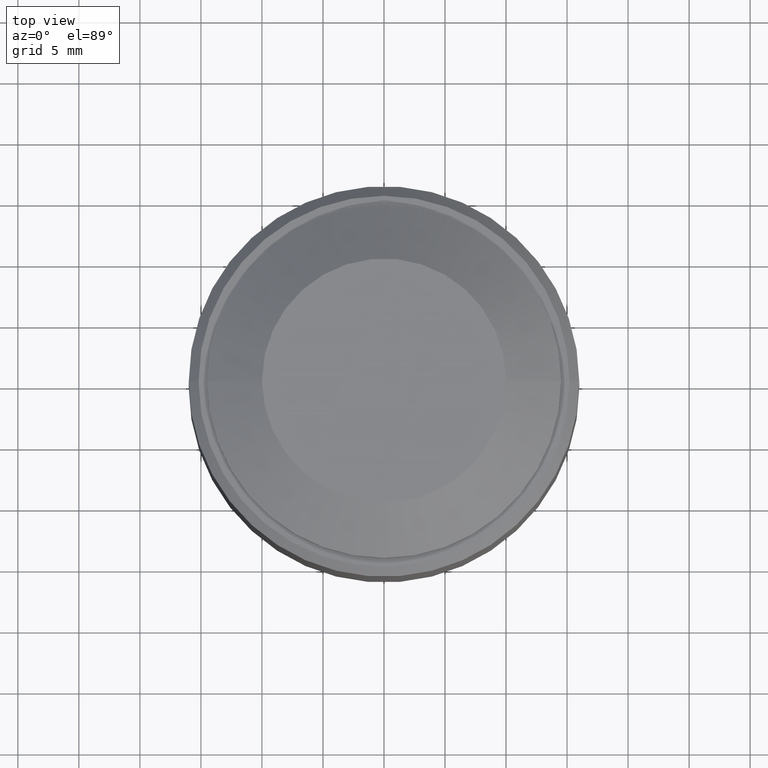
[diagram: clean part render]
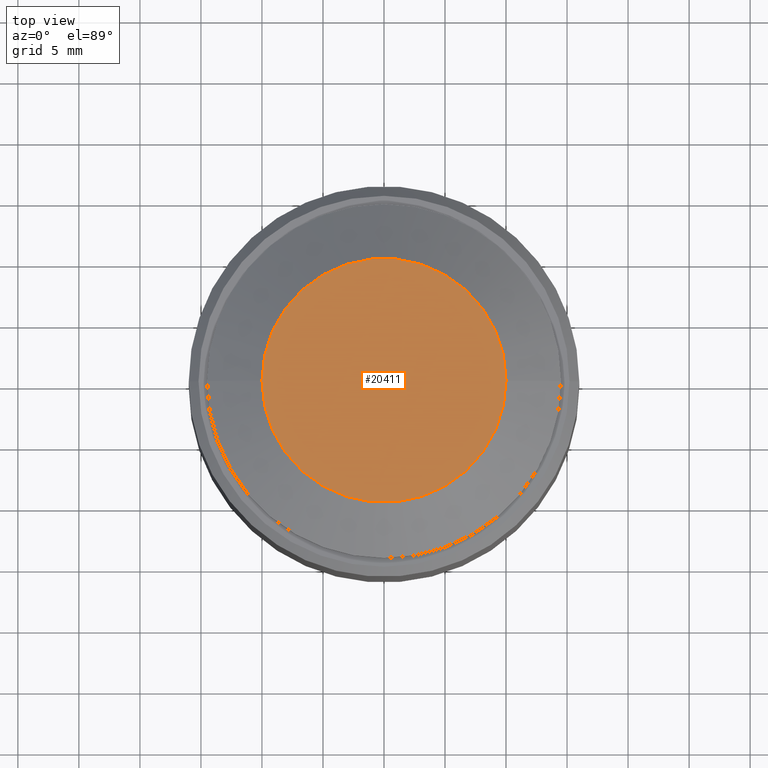
[diagram: same view with one face highlighted and labeled with its STEP entity id]
A machine part, top view. The second image highlights one B-rep face of the part: STEP entity #20411.
In plain terms, the highlighted planar face has unit normal (0, 0, 1).
Its self-contained STEP definition (entity closure, byte-faithful):
#1004 = DIRECTION ( 'NONE',  ( 1.000000000000000000, 0.000000000000000000, 0.000000000000000000 ) ) ;
#2628 = CARTESIAN_POINT ( 'NONE',  ( -10.00000000000000000, 0.000000000000000000, 39.30000000000000426 ) ) ;
#3061 = PLANE ( 'NONE',  #4702 ) ;
#3340 = AXIS2_PLACEMENT_3D ( 'NONE', #19295, #13082, #6904 ) ;
#4702 = AXIS2_PLACEMENT_3D ( 'NONE', #11448, #19844, #1004 ) ;
#6904 = DIRECTION ( 'NONE',  ( 1.000000000000000000, 0.000000000000000000, 0.000000000000000000 ) ) ;
#8310 = ORIENTED_EDGE ( 'NONE', *, *, #15014, .T. ) ;
#10643 = EDGE_CURVE ( 'NONE', #23518, #18609, #18245, .T. ) ;
#10744 = EDGE_LOOP ( 'NONE', ( #8310, #20550 ) ) ;
#11448 = CARTESIAN_POINT ( 'NONE',  ( 0.000000000000000000, 0.000000000000000000, 39.30000000000000426 ) ) ;
#13082 = DIRECTION ( 'NONE',  ( 0.000000000000000000, 0.000000000000000000, 1.000000000000000000 ) ) ;
#13804 = DIRECTION ( 'NONE',  ( 0.000000000000000000, 0.000000000000000000, 1.000000000000000000 ) ) ;
#15014 = EDGE_CURVE ( 'NONE', #18609, #23518, #20033, .T. ) ;
#16572 = CARTESIAN_POINT ( 'NONE',  ( 0.000000000000000000, 0.000000000000000000, 39.30000000000000426 ) ) ;
#18245 = CIRCLE ( 'NONE', #26166, 10.00000000000000000 ) ;
#18609 = VERTEX_POINT ( 'NONE', #2628 ) ;
#19295 = CARTESIAN_POINT ( 'NONE',  ( 0.000000000000000000, 0.000000000000000000, 39.30000000000000426 ) ) ;
#19844 = DIRECTION ( 'NONE',  ( 0.000000000000000000, 0.000000000000000000, 1.000000000000000000 ) ) ;
#20033 = CIRCLE ( 'NONE', #3340, 10.00000000000000000 ) ;
#20411 = ADVANCED_FACE ( 'NONE', ( #23995 ), #3061, .T. ) ;
#20550 = ORIENTED_EDGE ( 'NONE', *, *, #10643, .T. ) ;
#21548 = CARTESIAN_POINT ( 'NONE',  ( 10.00000000000000000, 1.500192328955507537E-15, 39.30000000000000426 ) ) ;
#22495 = DIRECTION ( 'NONE',  ( 1.000000000000000000, 0.000000000000000000, 0.000000000000000000 ) ) ;
#23518 = VERTEX_POINT ( 'NONE', #21548 ) ;
#23995 = FACE_OUTER_BOUND ( 'NONE', #10744, .T. ) ;
#26166 = AXIS2_PLACEMENT_3D ( 'NONE', #16572, #13804, #22495 ) ;